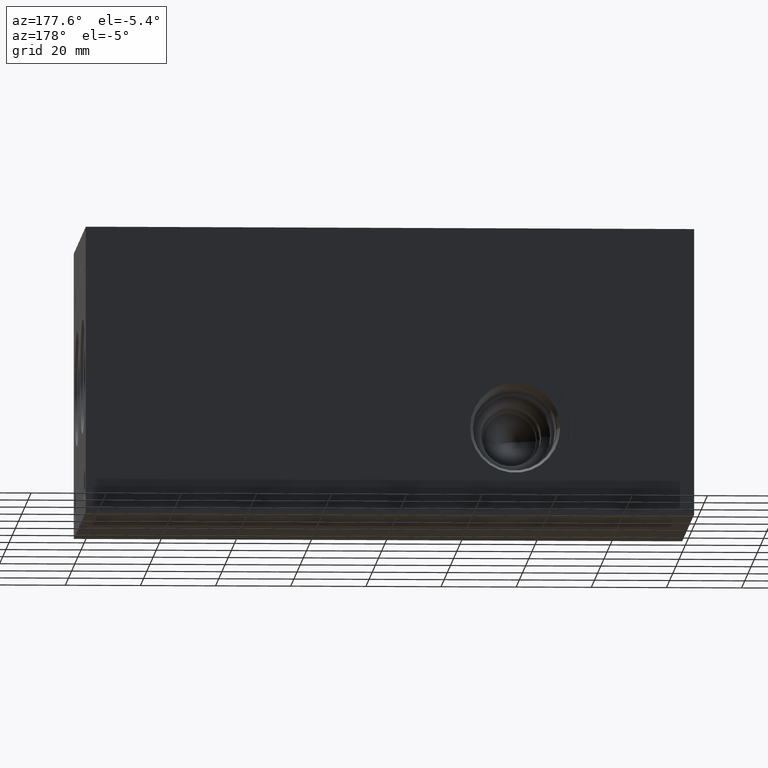
[diagram: clean part render]
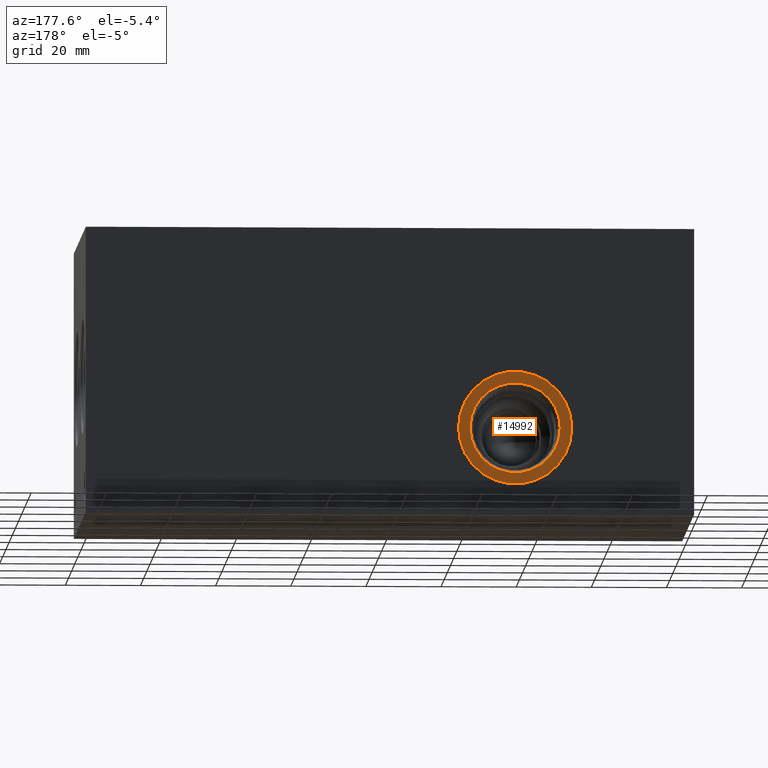
[diagram: same view with one face highlighted and labeled with its STEP entity id]
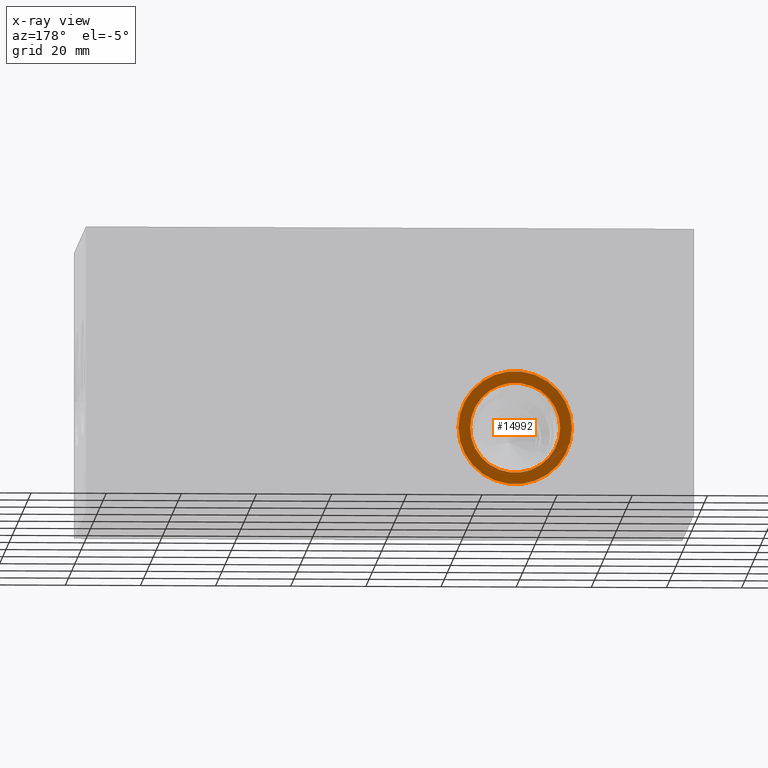
[diagram: x-ray of the same camera — body ghosted, the highlighted face saturated]
A machine part, auxiliary view. The second image highlights one B-rep face of the part: STEP entity #14992.
The next image is the same camera in x-ray: the body ghosted, the highlighted face saturated — about 0% of this face is hidden behind the body in this view.
In plain terms, the highlighted planar face has unit normal (0, -1, 0).
Its self-contained STEP definition (entity closure, byte-faithful):
#234=CIRCLE('',#15625,15.08);
#235=CIRCLE('',#15626,15.08);
#236=CIRCLE('',#15628,12.);
#237=CIRCLE('',#15629,12.);
#679=FACE_BOUND('',#2760,.T.);
#1905=FACE_OUTER_BOUND('',#2759,.T.);
#2759=EDGE_LOOP('',(#12307,#12308));
#2760=EDGE_LOOP('',(#12309,#12310));
#6720=VERTEX_POINT('',#25308);
#6721=VERTEX_POINT('',#25310);
#6722=VERTEX_POINT('',#25314);
#6723=VERTEX_POINT('',#25315);
#8694=EDGE_CURVE('',#6720,#6721,#234,.T.);
#8695=EDGE_CURVE('',#6721,#6720,#235,.T.);
#8696=EDGE_CURVE('',#6722,#6723,#236,.T.);
#8697=EDGE_CURVE('',#6723,#6722,#237,.T.);
#12307=ORIENTED_EDGE('',*,*,#8695,.F.);
#12308=ORIENTED_EDGE('',*,*,#8694,.F.);
#12309=ORIENTED_EDGE('',*,*,#8696,.T.);
#12310=ORIENTED_EDGE('',*,*,#8697,.T.);
#13855=PLANE('',#15627);
#14992=ADVANCED_FACE('',(#1905,#679),#13855,.F.);
#15625=AXIS2_PLACEMENT_3D('',#25311,#18129,#18130);
#15626=AXIS2_PLACEMENT_3D('',#25312,#18131,#18132);
#15627=AXIS2_PLACEMENT_3D('',#25313,#18133,#18134);
#15628=AXIS2_PLACEMENT_3D('',#25316,#18135,#18136);
#15629=AXIS2_PLACEMENT_3D('',#25317,#18137,#18138);
#18129=DIRECTION('center_axis',(0.,-1.,0.));
#18130=DIRECTION('ref_axis',(1.,0.,0.));
#18131=DIRECTION('center_axis',(0.,-1.,0.));
#18132=DIRECTION('ref_axis',(1.,0.,0.));
#18133=DIRECTION('center_axis',(0.,-1.,0.));
#18134=DIRECTION('ref_axis',(0.,0.,-1.));
#18135=DIRECTION('center_axis',(0.,-1.,0.));
#18136=DIRECTION('ref_axis',(1.,0.,0.));
#18137=DIRECTION('center_axis',(0.,-1.,0.));
#18138=DIRECTION('ref_axis',(1.,0.,0.));
#25308=CARTESIAN_POINT('',(32.545,75.41,23.0124));
#25310=CARTESIAN_POINT('',(62.705,75.41,23.0124));
#25311=CARTESIAN_POINT('Origin',(47.625,75.41,23.0124));
#25312=CARTESIAN_POINT('Origin',(47.625,75.41,23.0124));
#25313=CARTESIAN_POINT('Origin',(59.625,75.41,23.0124));
#25314=CARTESIAN_POINT('',(59.625,75.41,23.0124));
#25315=CARTESIAN_POINT('',(35.625,75.41,23.0124));
#25316=CARTESIAN_POINT('Origin',(47.625,75.41,23.0124));
#25317=CARTESIAN_POINT('Origin',(47.625,75.41,23.0124));